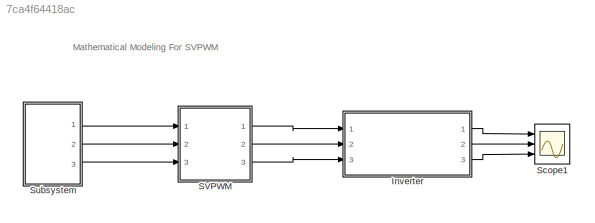
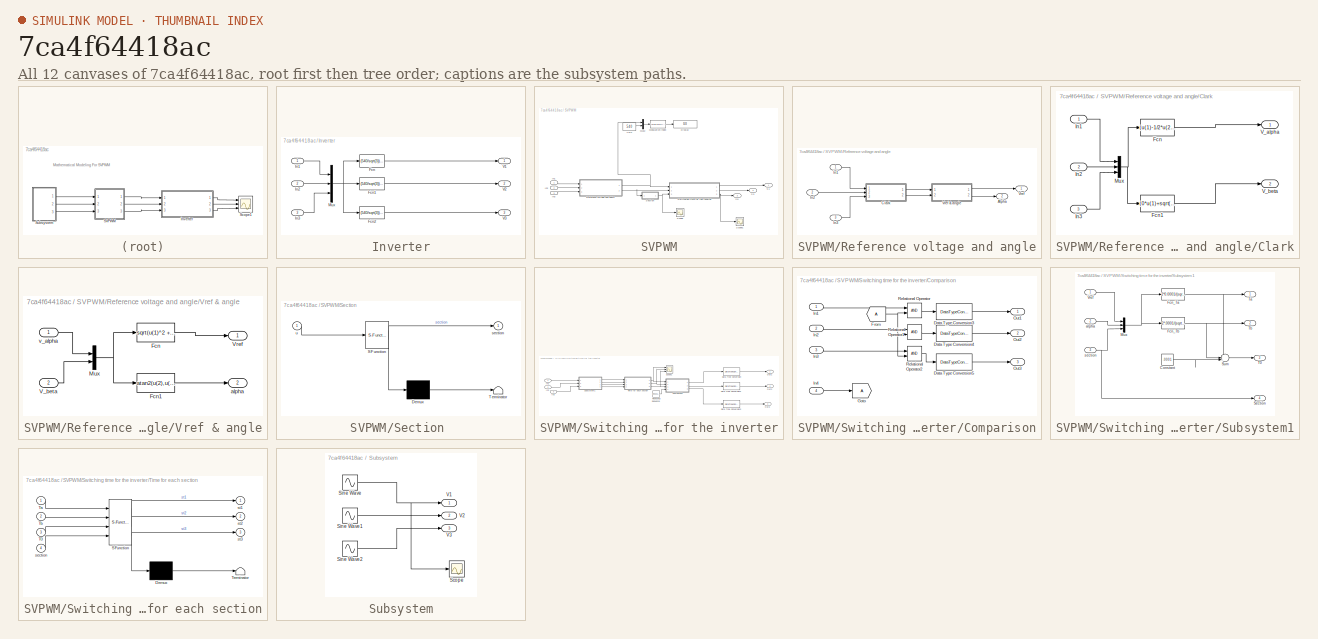
[diagram: thumbnail index - all 12 canvases of the model, root first then tree order]
MODEL slx_7ca4f64418ac
KIND model
CONFIG AbsTol = auto
CONFIG EnableMultiTasking = off
CONFIG FixedStep = .000001
CONFIG MaxStep = .00001
CONFIG MinStep = auto
CONFIG RelTol = 1e-3
CONFIG SampleTimeConstraint = Unconstrained
CONFIG Solver = VariableStepAuto
CONFIG SolverName = VariableStepAuto
CONFIG StartTime = 0.0
CONFIG StopTime = .3
BLOCK [SubSystem] Inverter
  Ports = [3, 3]
  RequestExecContextInheritance = off
  TreatAsAtomicUnit = on
BLOCK [Fcn] Inverter/Fcn
  Expr = (540/sqrt(3)) * (2*u(1)-u(2)-u(3))
BLOCK [Fcn] Inverter/Fcn1
  Expr = (540/sqrt(3)) * (2*u(2)-u(1)-u(3))
BLOCK [Fcn] Inverter/Fcn2
  Expr = (540/sqrt(3)) * (2*u(3)-u(2)-u(1))
BLOCK [Inport] Inverter/In1
  IconDisplay = Port number
  OutDataTypeStr = double
BLOCK [Inport] Inverter/In2
  IconDisplay = Port number
  OutDataTypeStr = double
  Port = 2
BLOCK [Inport] Inverter/In3
  IconDisplay = Port number
  OutDataTypeStr = double
  Port = 3
BLOCK [Mux] Inverter/Mux
  DisplayOption = bar
  Inputs = 3
  Ports = [3, 1]
BLOCK [Outport] Inverter/V1
  IconDisplay = Port number
BLOCK [Outport] Inverter/V2
  IconDisplay = Port number
  Port = 2
BLOCK [Outport] Inverter/V3
  IconDisplay = Port number
  Port = 3
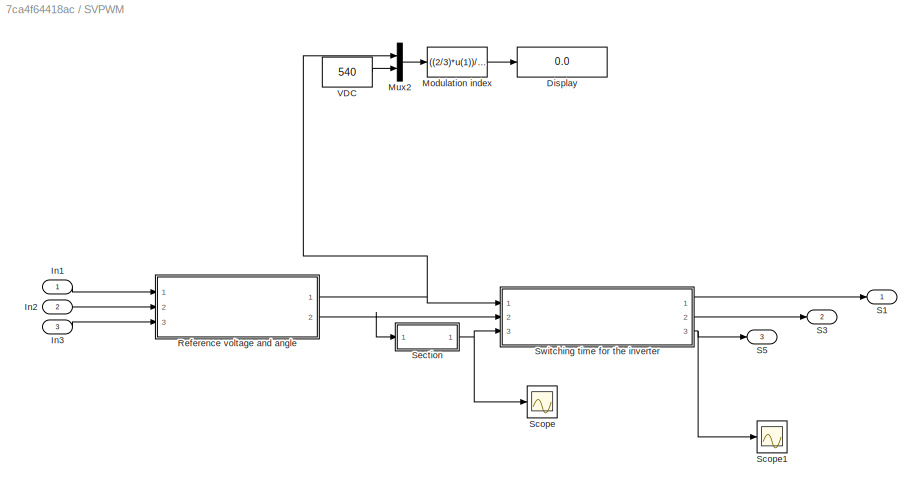
BLOCK [SubSystem] SVPWM
  Ports = [3, 3]
  RequestExecContextInheritance = off
  TreatAsAtomicUnit = on
BLOCK [Display] SVPWM/Display
  Decimation = 1
  Ports = [1]
BLOCK [Inport] SVPWM/In1
  IconDisplay = Port number
BLOCK [Inport] SVPWM/In2
  IconDisplay = Port number
  Port = 2
BLOCK [Inport] SVPWM/In3
  IconDisplay = Port number
  Port = 3
BLOCK [Fcn] SVPWM/Modulation index
  Expr = ((2/3)*u(1))/(2*u(2)/pi)
BLOCK [Mux] SVPWM/Mux2
  DisplayOption = bar
  Inputs = 2
  Ports = [2, 1]
BLOCK [SubSystem] SVPWM/Reference voltage and angle
  Ports = [3, 2]
  RequestExecContextInheritance = off
BLOCK [Outport] SVPWM/Reference voltage and angle/Alpha
  IconDisplay = Port number
  Port = 2
BLOCK [SubSystem] SVPWM/Reference voltage and angle/Clark
  Ports = [3, 2]
  RequestExecContextInheritance = off
BLOCK [Fcn] SVPWM/Reference voltage and angle/Clark/Fcn
  Expr = (u(1)-1/2*u(2)-1/2*u(3))
BLOCK [Fcn] SVPWM/Reference voltage and angle/Clark/Fcn1
  Expr = (0*u(1)+sqrt(3)/2*u(2)-sqrt(3)/2*u(3))
BLOCK [Inport] SVPWM/Reference voltage and angle/Clark/In1
  IconDisplay = Port number
BLOCK [Inport] SVPWM/Reference voltage and angle/Clark/In2
  IconDisplay = Port number
  Port = 2
BLOCK [Inport] SVPWM/Reference voltage and angle/Clark/In3
  IconDisplay = Port number
  Port = 3
BLOCK [Mux] SVPWM/Reference voltage and angle/Clark/Mux
  DisplayOption = bar
  Inputs = 3
  Ports = [3, 1]
BLOCK [Outport] SVPWM/Reference voltage and angle/Clark/V_alpha
  IconDisplay = Port number
BLOCK [Outport] SVPWM/Reference voltage and angle/Clark/V_beta
  IconDisplay = Port number
  Port = 2
BLOCK [Inport] SVPWM/Reference voltage and angle/In1
  IconDisplay = Port number
BLOCK [Inport] SVPWM/Reference voltage and angle/In2
  IconDisplay = Port number
  Port = 2
BLOCK [Inport] SVPWM/Reference voltage and angle/In3
  IconDisplay = Port number
  Port = 3
BLOCK [Outport] SVPWM/Reference voltage and angle/Vref
  IconDisplay = Port number
BLOCK [SubSystem] SVPWM/Reference voltage and angle/Vref & angle
  Ports = [2, 2]
  RequestExecContextInheritance = off
BLOCK [Fcn] SVPWM/Reference voltage and angle/Vref & angle/Fcn
  Expr = sqrt(u(1)^2 + u(2)^2)
BLOCK [Fcn] SVPWM/Reference voltage and angle/Vref & angle/Fcn1
  Expr = atan2(u(2),u(1))
BLOCK [Mux] SVPWM/Reference voltage and angle/Vref & angle/Mux
  DisplayOption = bar
  Inputs = 2
  Ports = [2, 1]
BLOCK [Inport] SVPWM/Reference voltage and angle/Vref & angle/V_beta
  IconDisplay = Port number
  Port = 2
BLOCK [Outport] SVPWM/Reference voltage and angle/Vref & angle/Vref
  IconDisplay = Port number
BLOCK [Outport] SVPWM/Reference voltage and angle/Vref & angle/alpha
  IconDisplay = Port number
  Port = 2
BLOCK [Inport] SVPWM/Reference voltage and angle/Vref & angle/v_alpha
  IconDisplay = Port number
BLOCK [Outport] SVPWM/S1
  IconDisplay = Port number
BLOCK [Outport] SVPWM/S3
  IconDisplay = Port number
  Port = 2
BLOCK [Outport] SVPWM/S5
  IconDisplay = Port number
  Port = 3
BLOCK [Scope] SVPWM/Scope
  Floating = off
  NumInputPorts = 1
  Ports = [1]
  ScopeSpecificationString = Simulink.scopes.TimeScopeBlockCfg('CurrentConfiguration', extmgr.ConfigurationSet(extmgr.Configuration('Core','General UI',true),extmgr.Configuration('Core','Source UI',true),extmgr.Configuration('Sources','WiredSimulink',true,'DataLoggingVariableName','ScopeData2'),extmgr.Configuration('Visuals','Time Domain',true,'SerializedDisplays',{struct('MinYLimReal','0.375','MaxYLimReal','6.625','YLabelRea...<+1420ch>
BLOCK [Scope] SVPWM/Scope1
  Floating = off
  NumInputPorts = 1
  Ports = [1]
  ScopeSpecificationString = Simulink.scopes.TimeScopeBlockCfg('CurrentConfiguration', extmgr.ConfigurationSet(extmgr.Configuration('Core','General UI',true),extmgr.Configuration('Core','Source UI',true),extmgr.Configuration('Sources','WiredSimulink',true,'DataLoggingVariableName','ScopeData3'),extmgr.Configuration('Visuals','Time Domain',true,'SerializedDisplays',{struct('MinYLimReal','-0.125','MaxYLimReal','1.125','YLabelRe...<+1451ch>
BLOCK [SubSystem] SVPWM/Section 
  ErrorFcn = Stateflow.Translate.translate
  PermitHierarchicalResolution = ExplicitOnly
  Ports = [1, 1]
  RequestExecContextInheritance = off
  SFBlockType = MATLAB Function
  TreatAsAtomicUnit = on
BLOCK [Demux] SVPWM/Section / Demux 
  Outputs = 1
  Ports = [1, 1]
BLOCK [S-Function] SVPWM/Section / SFunction 
  EnableBusSupport = on
  FunctionName = sf_sfun
  PortCounts = [1 2]
  Ports = [1, 2]
  SFcnIsStateOwnerBlock = off
  SFunctionDeploymentMode = off
  Tag = Stateflow S-Function SV_Modulation 2
BLOCK [Terminator] SVPWM/Section / Terminator 
BLOCK [Outport] SVPWM/Section /section
  IconDisplay = Port number
BLOCK [Inport] SVPWM/Section /u
  IconDisplay = Port number
BLOCK [SubSystem] SVPWM/Switching time for the inverter
  Ports = [3, 3]
  RequestExecContextInheritance = off
BLOCK [SubSystem] SVPWM/Switching time for the inverter/Comparison
  Ports = [4, 3]
  RequestExecContextInheritance = off
BLOCK [DataTypeConversion] SVPWM/Switching time for the inverter/Comparison/Data Type Conversion3
  OutDataTypeStr = boolean
  RndMeth = Floor
  SaturateOnIntegerOverflow = off
BLOCK [DataTypeConversion] SVPWM/Switching time for the inverter/Comparison/Data Type Conversion4
  OutDataTypeStr = boolean
  RndMeth = Floor
  SaturateOnIntegerOverflow = off
BLOCK [DataTypeConversion] SVPWM/Switching time for the inverter/Comparison/Data Type Conversion5
  OutDataTypeStr = boolean
  RndMeth = Floor
  SaturateOnIntegerOverflow = off
BLOCK [From] SVPWM/Switching time for the inverter/Comparison/From
BLOCK [Goto] SVPWM/Switching time for the inverter/Comparison/Goto
BLOCK [Inport] SVPWM/Switching time for the inverter/Comparison/In1
  IconDisplay = Port number
BLOCK [Inport] SVPWM/Switching time for the inverter/Comparison/In2
  IconDisplay = Port number
  Port = 2
BLOCK [Inport] SVPWM/Switching time for the inverter/Comparison/In3
  IconDisplay = Port number
  Port = 3
BLOCK [Inport] SVPWM/Switching time for the inverter/Comparison/In4
  IconDisplay = Port number
  Port = 4
BLOCK [Outport] SVPWM/Switching time for the inverter/Comparison/Out1
  IconDisplay = Port number
BLOCK [Outport] SVPWM/Switching time for the inverter/Comparison/Out2
  IconDisplay = Port number
  Port = 2
BLOCK [Outport] SVPWM/Switching time for the inverter/Comparison/Out3
  IconDisplay = Port number
  Port = 3
BLOCK [RelationalOperator] SVPWM/Switching time for the inverter/Comparison/Relational Operator
  InputSameDT = off
  OutDataTypeStr = boolean
  Ports = [2, 1]
  RndMeth = Simplest
BLOCK [RelationalOperator] SVPWM/Switching time for the inverter/Comparison/Relational Operator1
  InputSameDT = off
  OutDataTypeStr = boolean
  Ports = [2, 1]
  RndMeth = Simplest
BLOCK [RelationalOperator] SVPWM/Switching time for the inverter/Comparison/Relational Operator2
  InputSameDT = off
  OutDataTypeStr = boolean
  Ports = [2, 1]
  RndMeth = Simplest
BLOCK [DataTypeConversion] SVPWM/Switching time for the inverter/Data Type Conversion
  OutDataTypeStr = double
  RndMeth = Floor
  SaturateOnIntegerOverflow = off
BLOCK [DataTypeConversion] SVPWM/Switching time for the inverter/Data Type Conversion1
  OutDataTypeStr = double
  RndMeth = Floor
  SaturateOnIntegerOverflow = off
BLOCK [DataTypeConversion] SVPWM/Switching time for the inverter/Data Type Conversion2
  OutDataTypeStr = double
  RndMeth = Floor
  SaturateOnIntegerOverflow = off
BLOCK [Inport] SVPWM/Switching time for the inverter/In1
  IconDisplay = Port number
BLOCK [Inport] SVPWM/Switching time for the inverter/In2
  IconDisplay = Port number
  Port = 2
BLOCK [Inport] SVPWM/Switching time for the inverter/In3
  IconDisplay = Port number
  Port = 3
BLOCK [Outport] SVPWM/Switching time for the inverter/Out1
  IconDisplay = Port number
BLOCK [Outport] SVPWM/Switching time for the inverter/Out2
  IconDisplay = Port number
  Port = 2
BLOCK [Outport] SVPWM/Switching time for the inverter/Out3
  IconDisplay = Port number
  Port = 3
BLOCK [Reference] SVPWM/Switching time for the inverter/Repeating Sequence  REF=simulink/Sources/Repeating
Sequence
  Ports = [0, 1]
  SourceBlock = simulink/Sources/Repeating\nSequence
  SourceProductBaseCode = SL
  SourceProductName = Simulink
  SourceType = Repeating table
BLOCK [Scope] SVPWM/Switching time for the inverter/Scope1
  Floating = off
  NumInputPorts = 3
  Ports = [3]
  ScopeSpecificationString = Simulink.scopes.TimeScopeBlockCfg('CurrentConfiguration', extmgr.ConfigurationSet(extmgr.Configuration('Core','General UI',true),extmgr.Configuration('Core','Source UI',true),extmgr.Configuration('Sources','WiredSimulink',true,'DataLoggingVariableName','ScopeData3'),extmgr.Configuration('Visuals','Time Domain',true,'SerializedDisplays',{struct('MinYLimReal','-0.00004','MaxYLimReal','0.00014','YLab...<+2838ch>
BLOCK [SubSystem] SVPWM/Switching time for the inverter/Subsystem1
  Ports = [3, 4]
  RequestExecContextInheritance = off
BLOCK [Constant] SVPWM/Switching time for the inverter/Subsystem1/Constant
  Value = .0001
BLOCK [Fcn] SVPWM/Switching time for the inverter/Subsystem1/Fcn_Ta
  Expr = 2*0.0001/(sqrt(3)*380)*u(1)*sin(pi*u(3)/3-u(2))
BLOCK [Fcn] SVPWM/Switching time for the inverter/Subsystem1/Fcn_Tb
  Expr = 2*.0001/(sqrt(3)*380)*u(1)*sin(u(2)- (u(3)-1)*pi/3 )
BLOCK [Mux] SVPWM/Switching time for the inverter/Subsystem1/Mux
  DisplayOption = bar
  Inputs = 3
  Ports = [3, 1]
BLOCK [Outport] SVPWM/Switching time for the inverter/Subsystem1/Section
  IconDisplay = Port number
  Port = 4
BLOCK [Sum] SVPWM/Switching time for the inverter/Subsystem1/Sum
  IconShape = round
  InputSameDT = off
  Inputs = --+
  OutDataTypeStr = Inherit: Inherit via internal rule
  Ports = [3, 1]
  SaturateOnIntegerOverflow = off
BLOCK [Outport] SVPWM/Switching time for the inverter/Subsystem1/T0
  IconDisplay = Port number
  Port = 3
BLOCK [Outport] SVPWM/Switching time for the inverter/Subsystem1/Ta
  IconDisplay = Port number
BLOCK [Outport] SVPWM/Switching time for the inverter/Subsystem1/Tb
  IconDisplay = Port number
  Port = 2
BLOCK [Inport] SVPWM/Switching time for the inverter/Subsystem1/Vref
  IconDisplay = Port number
BLOCK [Inport] SVPWM/Switching time for the inverter/Subsystem1/alpha
  IconDisplay = Port number
  Port = 2
BLOCK [Inport] SVPWM/Switching time for the inverter/Subsystem1/section
  IconDisplay = Port number
  Port = 3
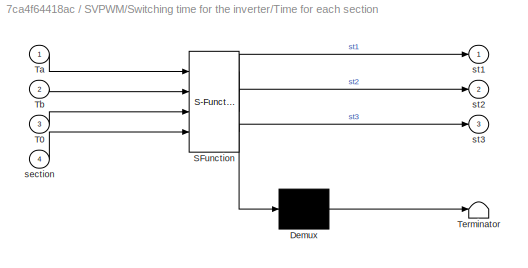
BLOCK [SubSystem] SVPWM/Switching time for the inverter/Time for each section
  ErrorFcn = Stateflow.Translate.translate
  PermitHierarchicalResolution = ExplicitOnly
  Ports = [4, 3]
  RequestExecContextInheritance = off
  SFBlockType = MATLAB Function
  TreatAsAtomicUnit = on
BLOCK [Demux] SVPWM/Switching time for the inverter/Time for each section/ Demux 
  Outputs = 1
  Ports = [1, 1]
BLOCK [S-Function] SVPWM/Switching time for the inverter/Time for each section/ SFunction 
  EnableBusSupport = on
  FunctionName = sf_sfun
  PortCounts = [4 4]
  Ports = [4, 4]
  SFcnIsStateOwnerBlock = off
  SFunctionDeploymentMode = off
  Tag = Stateflow S-Function SV_Modulation 1
BLOCK [Terminator] SVPWM/Switching time for the inverter/Time for each section/ Terminator 
BLOCK [Inport] SVPWM/Switching time for the inverter/Time for each section/T0
  IconDisplay = Port number
  Port = 3
BLOCK [Inport] SVPWM/Switching time for the inverter/Time for each section/Ta
  IconDisplay = Port number
BLOCK [Inport] SVPWM/Switching time for the inverter/Time for each section/Tb
  IconDisplay = Port number
  Port = 2
BLOCK [Inport] SVPWM/Switching time for the inverter/Time for each section/section
  IconDisplay = Port number
  Port = 4
BLOCK [Outport] SVPWM/Switching time for the inverter/Time for each section/st1
  IconDisplay = Port number
BLOCK [Outport] SVPWM/Switching time for the inverter/Time for each section/st2
  IconDisplay = Port number
  Port = 2
BLOCK [Outport] SVPWM/Switching time for the inverter/Time for each section/st3
  IconDisplay = Port number
  Port = 3
BLOCK [Constant] SVPWM/VDC
  Value = 540
BLOCK [Scope] Scope1
  Floating = off
  NumInputPorts = 3
  Ports = [3]
  ScopeSpecificationString = Simulink.scopes.TimeScopeBlockCfg('CurrentConfiguration', extmgr.ConfigurationSet(extmgr.Configuration('Core','General UI',true,'FigureColor',[1 1 1]),extmgr.Configuration('Core','Source UI',true),extmgr.Configuration('Sources','WiredSimulink',true,'DataLoggingVariableName','ScopeData1'),extmgr.Configuration('Visuals','Time Domain',true,'SerializedDisplays',{struct('MinYLimReal','-779.42286','MaxY...<+3212ch>
BLOCK [SubSystem] Subsystem
  Ports = [0, 3]
  RequestExecContextInheritance = off
BLOCK [Scope] Subsystem/Scope
  Floating = off
  NumInputPorts = 1
  Ports = [1]
  ScopeSpecificationString = Simulink.scopes.TimeScopeBlockCfg('CurrentConfiguration', extmgr.ConfigurationSet(extmgr.Configuration('Core','General UI',true),extmgr.Configuration('Core','Source UI',true),extmgr.Configuration('Sources','WiredSimulink',true,'DataLoggingVariableName','ScopeData1'),extmgr.Configuration('Visuals','Time Domain',true,'SerializedDisplays',{struct('MinYLimReal','-349.31075','MaxYLimReal','349.31075','...<+1426ch>
BLOCK [Sin] Subsystem/Sine Wave
  Amplitude = Vp*sqrt(2)
  Frequency = 2*pi*50
  Ports = [0, 1]
  SampleTime = 0
BLOCK [Sin] Subsystem/Sine Wave1
  Amplitude = Vp*sqrt(2)
  Frequency = 2*pi*50
  Phase = -2*pi/3
  Ports = [0, 1]
  SampleTime = 0
BLOCK [Sin] Subsystem/Sine Wave2
  Amplitude = Vp*sqrt(2)
  Frequency = 2*pi*50
  Phase = 2*pi/3
  Ports = [0, 1]
  SampleTime = 0
BLOCK [Outport] Subsystem/V1
  IconDisplay = Port number
BLOCK [Outport] Subsystem/V2
  IconDisplay = Port number
  Port = 2
BLOCK [Outport] Subsystem/V3
  IconDisplay = Port number
  Port = 3
ANNOTATION (root): Mathematical Modeling For SVPWM
LINE Inverter/Fcn1:1 -> Inverter/V2:1
LINE Inverter/Fcn2:1 -> Inverter/V3:1
LINE Inverter/Fcn:1 -> Inverter/V1:1
LINE Inverter/In1:1 -> Inverter/Mux:1
LINE Inverter/In2:1 -> Inverter/Mux:2
LINE Inverter/In3:1 -> Inverter/Mux:3
NET Inverter/Mux:1 -> Inverter/Fcn1:1, Inverter/Fcn2:1, Inverter/Fcn:1
LINE Inverter:1 -> Scope1:1
LINE Inverter:2 -> Scope1:2
LINE Inverter:3 -> Scope1:3
LINE SVPWM/In1:1 -> SVPWM/Reference voltage and angle:1
LINE SVPWM/In2:1 -> SVPWM/Reference voltage and angle:2
LINE SVPWM/In3:1 -> SVPWM/Reference voltage and angle:3
LINE SVPWM/Modulation index:1 -> SVPWM/Display:1
LINE SVPWM/Mux2:1 -> SVPWM/Modulation index:1
LINE SVPWM/Reference voltage and angle/Clark/Fcn1:1 -> SVPWM/Reference voltage and angle/Clark/V_beta:1
LINE SVPWM/Reference voltage and angle/Clark/Fcn:1 -> SVPWM/Reference voltage and angle/Clark/V_alpha:1
LINE SVPWM/Reference voltage and angle/Clark/In1:1 -> SVPWM/Reference voltage and angle/Clark/Mux:1
LINE SVPWM/Reference voltage and angle/Clark/In2:1 -> SVPWM/Reference voltage and angle/Clark/Mux:2
LINE SVPWM/Reference voltage and angle/Clark/In3:1 -> SVPWM/Reference voltage and angle/Clark/Mux:3
NET SVPWM/Reference voltage and angle/Clark/Mux:1 -> SVPWM/Reference voltage and angle/Clark/Fcn1:1, SVPWM/Reference voltage and angle/Clark/Fcn:1
LINE SVPWM/Reference voltage and angle/Clark:1 -> SVPWM/Reference voltage and angle/Vref & angle:1
LINE SVPWM/Reference voltage and angle/Clark:2 -> SVPWM/Reference voltage and angle/Vref & angle:2
LINE SVPWM/Reference voltage and angle/In1:1 -> SVPWM/Reference voltage and angle/Clark:1
LINE SVPWM/Reference voltage and angle/In2:1 -> SVPWM/Reference voltage and angle/Clark:2
LINE SVPWM/Reference voltage and angle/In3:1 -> SVPWM/Reference voltage and angle/Clark:3
LINE SVPWM/Reference voltage and angle/Vref & angle/Fcn1:1 -> SVPWM/Reference voltage and angle/Vref & angle/alpha:1
LINE SVPWM/Reference voltage and angle/Vref & angle/Fcn:1 -> SVPWM/Reference voltage and angle/Vref & angle/Vref:1
NET SVPWM/Reference voltage and angle/Vref & angle/Mux:1 -> SVPWM/Reference voltage and angle/Vref & angle/Fcn1:1, SVPWM/Reference voltage and angle/Vref & angle/Fcn:1
LINE SVPWM/Reference voltage and angle/Vref & angle/V_beta:1 -> SVPWM/Reference voltage and angle/Vref & angle/Mux:2
LINE SVPWM/Reference voltage and angle/Vref & angle/v_alpha:1 -> SVPWM/Reference voltage and angle/Vref & angle/Mux:1
LINE SVPWM/Reference voltage and angle/Vref & angle:1 -> SVPWM/Reference voltage and angle/Vref:1
LINE SVPWM/Reference voltage and angle/Vref & angle:2 -> SVPWM/Reference voltage and angle/Alpha:1
NET SVPWM/Reference voltage and angle:1 -> SVPWM/Mux2:1, SVPWM/Switching time for the inverter:1
NET SVPWM/Reference voltage and angle:2 -> SVPWM/Section :1, SVPWM/Switching time for the inverter:2
NET SVPWM/Section :1 -> SVPWM/Scope:1, SVPWM/Switching time for the inverter:3
LINE SVPWM/Switching time for the inverter/Comparison/Data Type Conversion3:1 -> SVPWM/Switching time for the inverter/Comparison/Out1:1
LINE SVPWM/Switching time for the inverter/Comparison/Data Type Conversion4:1 -> SVPWM/Switching time for the inverter/Comparison/Out2:1
LINE SVPWM/Switching time for the inverter/Comparison/Data Type Conversion5:1 -> SVPWM/Switching time for the inverter/Comparison/Out3:1
NET SVPWM/Switching time for the inverter/Comparison/From:1 -> SVPWM/Switching time for the inverter/Comparison/Relational Operator1:2, SVPWM/Switching time for the inverter/Comparison/Relational Operator2:2, SVPWM/Switching time for the inverter/Comparison/Relational Operator:2
LINE SVPWM/Switching time for the inverter/Comparison/In1:1 -> SVPWM/Switching time for the inverter/Comparison/Relational Operator:1
LINE SVPWM/Switching time for the inverter/Comparison/In2:1 -> SVPWM/Switching time for the inverter/Comparison/Relational Operator1:1
LINE SVPWM/Switching time for the inverter/Comparison/In3:1 -> SVPWM/Switching time for the inverter/Comparison/Relational Operator2:1
LINE SVPWM/Switching time for the inverter/Comparison/In4:1 -> SVPWM/Switching time for the inverter/Comparison/Goto:1
LINE SVPWM/Switching time for the inverter/Comparison/Relational Operator1:1 -> SVPWM/Switching time for the inverter/Comparison/Data Type Conversion4:1
LINE SVPWM/Switching time for the inverter/Comparison/Relational Operator2:1 -> SVPWM/Switching time for the inverter/Comparison/Data Type Conversion5:1
LINE SVPWM/Switching time for the inverter/Comparison/Relational Operator:1 -> SVPWM/Switching time for the inverter/Comparison/Data Type Conversion3:1
LINE SVPWM/Switching time for the inverter/Comparison:1 -> SVPWM/Switching time for the inverter/Data Type Conversion:1
LINE SVPWM/Switching time for the inverter/Comparison:2 -> SVPWM/Switching time for the inverter/Data Type Conversion1:1
LINE SVPWM/Switching time for the inverter/Comparison:3 -> SVPWM/Switching time for the inverter/Data Type Conversion2:1
LINE SVPWM/Switching time for the inverter/Data Type Conversion1:1 -> SVPWM/Switching time for the inverter/Out2:1
LINE SVPWM/Switching time for the inverter/Data Type Conversion2:1 -> SVPWM/Switching time for the inverter/Out3:1
LINE SVPWM/Switching time for the inverter/Data Type Conversion:1 -> SVPWM/Switching time for the inverter/Out1:1
LINE SVPWM/Switching time for the inverter/In1:1 -> SVPWM/Switching time for the inverter/Subsystem1:1
LINE SVPWM/Switching time for the inverter/In2:1 -> SVPWM/Switching time for the inverter/Subsystem1:2
LINE SVPWM/Switching time for the inverter/In3:1 -> SVPWM/Switching time for the inverter/Subsystem1:3
LINE SVPWM/Switching time for the inverter/Repeating Sequence:1 -> SVPWM/Switching time for the inverter/Comparison:4
LINE SVPWM/Switching time for the inverter/Subsystem1/Constant:1 -> SVPWM/Switching time for the inverter/Subsystem1/Sum:3
NET SVPWM/Switching time for the inverter/Subsystem1/Fcn_Ta:1 -> SVPWM/Switching time for the inverter/Subsystem1/Sum:1, SVPWM/Switching time for the inverter/Subsystem1/Ta:1
NET SVPWM/Switching time for the inverter/Subsystem1/Fcn_Tb:1 -> SVPWM/Switching time for the inverter/Subsystem1/Sum:2, SVPWM/Switching time for the inverter/Subsystem1/Tb:1
NET SVPWM/Switching time for the inverter/Subsystem1/Mux:1 -> SVPWM/Switching time for the inverter/Subsystem1/Fcn_Ta:1, SVPWM/Switching time for the inverter/Subsystem1/Fcn_Tb:1
LINE SVPWM/Switching time for the inverter/Subsystem1/Sum:1 -> SVPWM/Switching time for the inverter/Subsystem1/T0:1
LINE SVPWM/Switching time for the inverter/Subsystem1/Vref:1 -> SVPWM/Switching time for the inverter/Subsystem1/Mux:1
LINE SVPWM/Switching time for the inverter/Subsystem1/alpha:1 -> SVPWM/Switching time for the inverter/Subsystem1/Mux:2
NET SVPWM/Switching time for the inverter/Subsystem1/section:1 -> SVPWM/Switching time for the inverter/Subsystem1/Mux:3, SVPWM/Switching time for the inverter/Subsystem1/Section:1
LINE SVPWM/Switching time for the inverter/Subsystem1:1 -> SVPWM/Switching time for the inverter/Time for each section:1
LINE SVPWM/Switching time for the inverter/Subsystem1:2 -> SVPWM/Switching time for the inverter/Time for each section:2
LINE SVPWM/Switching time for the inverter/Subsystem1:3 -> SVPWM/Switching time for the inverter/Time for each section:3
LINE SVPWM/Switching time for the inverter/Subsystem1:4 -> SVPWM/Switching time for the inverter/Time for each section:4
NET SVPWM/Switching time for the inverter/Time for each section:1 -> SVPWM/Switching time for the inverter/Comparison:1, SVPWM/Switching time for the inverter/Scope1:1
NET SVPWM/Switching time for the inverter/Time for each section:2 -> SVPWM/Switching time for the inverter/Comparison:2, SVPWM/Switching time for the inverter/Scope1:2
NET SVPWM/Switching time for the inverter/Time for each section:3 -> SVPWM/Switching time for the inverter/Comparison:3, SVPWM/Switching time for the inverter/Scope1:3
LINE SVPWM/Switching time for the inverter:1 -> SVPWM/S1:1
LINE SVPWM/Switching time for the inverter:2 -> SVPWM/S3:1
NET SVPWM/Switching time for the inverter:3 -> SVPWM/S5:1, SVPWM/Scope1:1
LINE SVPWM/VDC:1 -> SVPWM/Mux2:2
LINE SVPWM:1 -> Inverter:1
LINE SVPWM:2 -> Inverter:2
LINE SVPWM:3 -> Inverter:3
LINE Subsystem/Sine Wave1:1 -> Subsystem/V2:1
LINE Subsystem/Sine Wave2:1 -> Subsystem/V3:1
NET Subsystem/Sine Wave:1 -> Subsystem/Scope:1, Subsystem/V1:1
LINE Subsystem:1 -> SVPWM:1
LINE Subsystem:2 -> SVPWM:2
LINE Subsystem:3 -> SVPWM:3
note: NET lines group one-source signal fan-out (src -> all destinations, sorted); 1:1 wires keep LINE
CHART SVPWM/Switching time for the inverter/Time for each section states=1 transitions=1
  STATE_LABEL 'eML_blk_kernel()'
  STATE_LABEL 'SCRIPT:\nfunction [st1,st2,st3]= fcn(Ta,Tb,T0,section)\nTperiod=.0001;\nif section==1\n    st1= Tperiod - (T0/2);\n    st2= (T0/2)+ Tb ;\n    st3= (T0/2) ;\nelseif section==2\n    st1= (T0/2)+ Ta ;\n    st2= Tperiod - (T0/2);\n    st3= (T0/2) ;\nelseif section==3\n    st1= (T0/2) ;\n    st2= Tperiod - (T0/2);\n    st3= (T0/2)+ Tb ;\nelseif section==4\n    st1= (T0/2) ;\n    st2=  (T0/2)+ Ta ;\n    st3= Tperiod - (T...<+172ch>'
CHART SVPWM/Section  states=1 transitions=1
  STATE_LABEL 'eML_blk_kernel()'
  STATE_LABEL 'SCRIPT:\nfunction section = fcn(u)\n u= 360/(2*pi)*u ; \nif (u>=0)&&(u<60)\n    section=1;\nelseif(u>=60)&&(u<120)\n    section=2;\nelseif (u>=120)&&(u<180)\n    section=3;\nelseif (u>=-180)&&(u<-120)\n    section=4;\nelseif (u>=-120)&&(u<-60)\n    section=5;\nelseif (u>=-60) && (u<0)\n    section=6;\nelse \n    section=0;\nend\nend\n\n'
